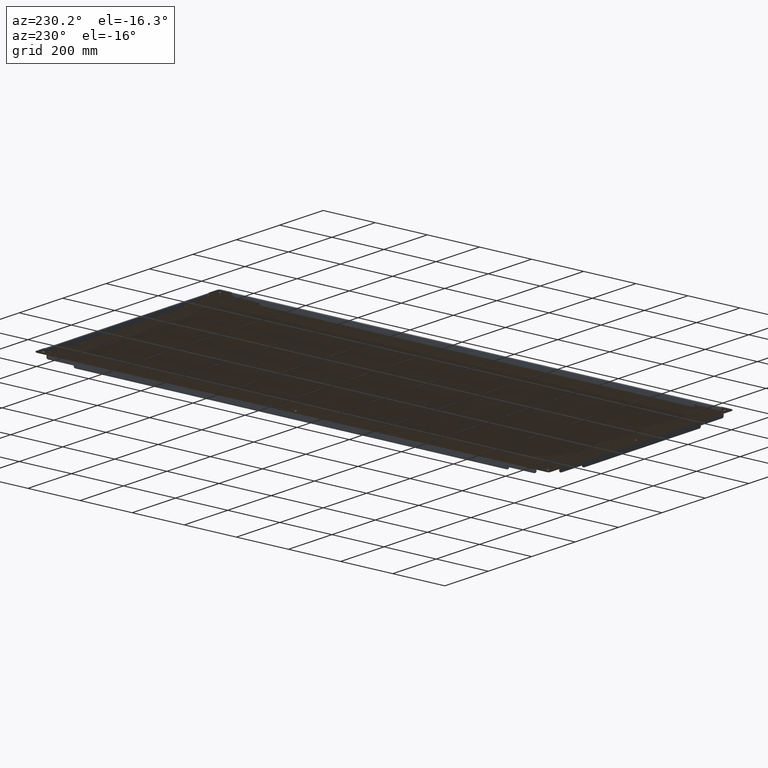
[diagram: clean part render]
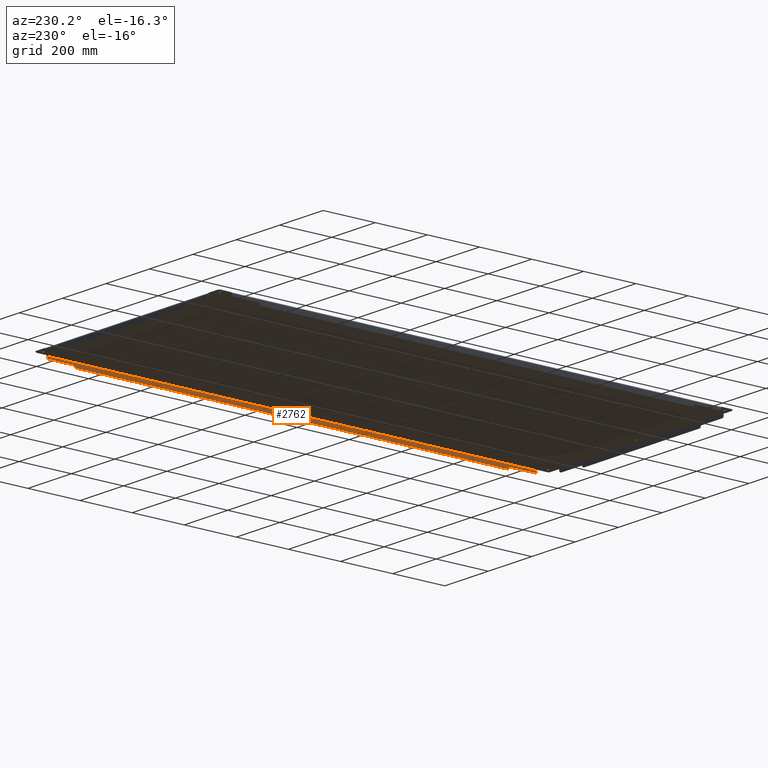
[diagram: same view with one face highlighted and labeled with its STEP entity id]
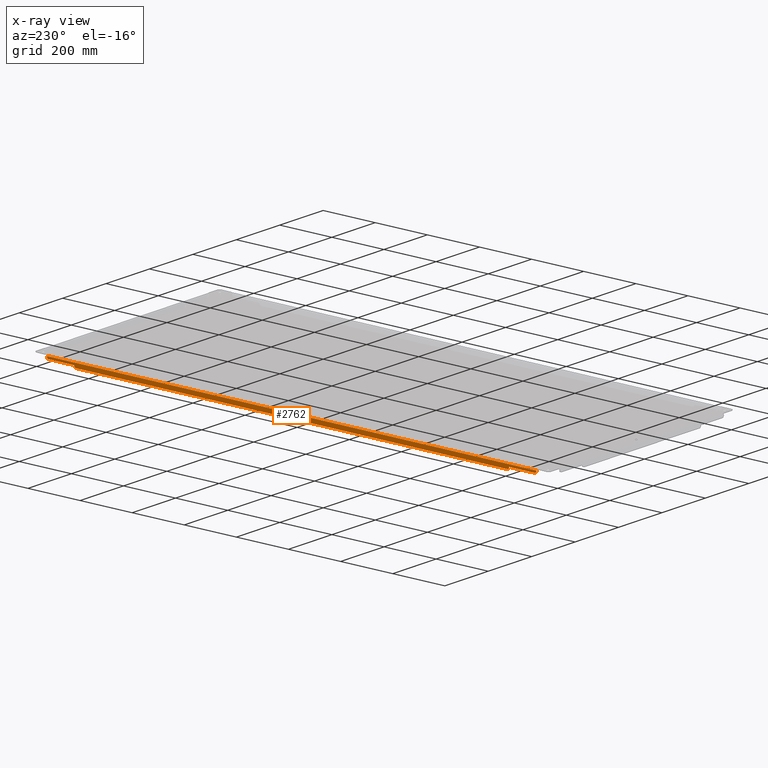
[diagram: x-ray of the same camera — body ghosted, the highlighted face saturated]
A machine part, auxiliary view. The second image highlights one B-rep face of the part: STEP entity #2762.
The next image is the same camera in x-ray: the body ghosted, the highlighted face saturated — about 0% of this face is hidden behind the body in this view.
In plain terms, the highlighted planar face has unit normal (1, 0, 0).
Its self-contained STEP definition (entity closure, byte-faithful):
#14 = ORIENTED_EDGE ( 'NONE', *, *, #2998, .T. ) ;
#110 = DIRECTION ( 'NONE',  ( 1.136448765364339494E-13, 1.000000000000000000, 0.0000000000000000000 ) ) ;
#176 = VECTOR ( 'NONE', #3451, 39.37007874015748143 ) ;
#180 = VERTEX_POINT ( 'NONE', #2625 ) ;
#184 = VERTEX_POINT ( 'NONE', #2670 ) ;
#192 = EDGE_CURVE ( 'NONE', #2556, #449, #2334, .T. ) ;
#208 = CARTESIAN_POINT ( 'NONE',  ( 16.71875000000000000, 32.59375000000000000, -0.6250000000000000000 ) ) ;
#210 = CARTESIAN_POINT ( 'NONE',  ( 16.71875000000000000, 32.84375000000000000, -0.6250000000000000000 ) ) ;
#227 = AXIS2_PLACEMENT_3D ( 'NONE', #834, #2701, #110 ) ;
#284 = VECTOR ( 'NONE', #3834, 39.37007874015748143 ) ;
#298 = VERTEX_POINT ( 'NONE', #481 ) ;
#304 = ORIENTED_EDGE ( 'NONE', *, *, #2195, .F. ) ;
#371 = DIRECTION ( 'NONE',  ( 0.0000000000000000000, 0.0000000000000000000, -1.000000000000000000 ) ) ;
#421 = VECTOR ( 'NONE', #607, 39.37007874015748143 ) ;
#449 = VERTEX_POINT ( 'NONE', #2563 ) ;
#472 = CARTESIAN_POINT ( 'NONE',  ( 16.71875000000000000, -32.59375000000000000, -0.6250000000000000000 ) ) ;
#481 = CARTESIAN_POINT ( 'NONE',  ( 16.71875000000000000, -36.96874999999939604, -0.3125000000000000000 ) ) ;
#531 = VERTEX_POINT ( 'NONE', #4193 ) ;
#581 = ORIENTED_EDGE ( 'NONE', *, *, #2560, .T. ) ;
#607 = DIRECTION ( 'NONE',  ( 0.0000000000000000000, -1.000000000000000000, -0.0000000000000000000 ) ) ;
#627 = FACE_OUTER_BOUND ( 'NONE', #2581, .T. ) ;
#741 = CARTESIAN_POINT ( 'NONE',  ( 16.71875000000000000, -36.96874999999999289, -0.2369999999999999607 ) ) ;
#777 = AXIS2_PLACEMENT_3D ( 'NONE', #3283, #3646, #371 ) ;
#814 = LINE ( 'NONE', #3765, #2387 ) ;
#834 = CARTESIAN_POINT ( 'NONE',  ( 16.71875000000002487, -36.71874999999881339, -0.3125000000000000000 ) ) ;
#948 = EDGE_CURVE ( 'NONE', #531, #184, #2814, .T. ) ;
#968 = CARTESIAN_POINT ( 'NONE',  ( 16.71875000000000000, -38.84375000000000000, 0.0000000000000000000 ) ) ;
#1013 = PLANE ( 'NONE',  #3480 ) ;
#1041 = EDGE_CURVE ( 'NONE', #298, #2421, #2067, .T. ) ;
#1108 = ORIENTED_EDGE ( 'NONE', *, *, #1041, .F. ) ;
#1304 = VECTOR ( 'NONE', #2603, 39.37007874015748143 ) ;
#1348 = DIRECTION ( 'NONE',  ( -0.0000000000000000000, -0.0000000000000000000, 1.000000000000000000 ) ) ;
#1361 = AXIS2_PLACEMENT_3D ( 'NONE', #472, #3065, #2161 ) ;
#1379 = CARTESIAN_POINT ( 'NONE',  ( 16.71875000000000000, -32.84375000000000000, -0.6250000000000000000 ) ) ;
#1480 = ORIENTED_EDGE ( 'NONE', *, *, #2126, .F. ) ;
#1508 = CARTESIAN_POINT ( 'NONE',  ( 16.71875000000000000, 34.90625000000000000, -0.5625000000000000000 ) ) ;
#1531 = CARTESIAN_POINT ( 'NONE',  ( 16.71875000000000000, -36.96874999999999289, -0.5560000000000000497 ) ) ;
#1533 = AXIS2_PLACEMENT_3D ( 'NONE', #208, #2230, #2800 ) ;
#1558 = CARTESIAN_POINT ( 'NONE',  ( 16.71875000000000000, 36.71875000000000000, -0.5625000000000000000 ) ) ;
#1580 = LINE ( 'NONE', #1982, #3222 ) ;
#1613 = EDGE_CURVE ( 'NONE', #2116, #2556, #4043, .T. ) ;
#1649 = DIRECTION ( 'NONE',  ( 0.0000000000000000000, 0.0000000000000000000, -1.000000000000000000 ) ) ;
#1768 = DIRECTION ( 'NONE',  ( 0.0000000000000000000, 1.000000000000000000, 0.0000000000000000000 ) ) ;
#1772 = EDGE_CURVE ( 'NONE', #2147, #3693, #3069, .T. ) ;
#1839 = ORIENTED_EDGE ( 'NONE', *, *, #1981, .F. ) ;
#1891 = LINE ( 'NONE', #1508, #421 ) ;
#1981 = EDGE_CURVE ( 'NONE', #2421, #2147, #1580, .T. ) ;
#1982 = CARTESIAN_POINT ( 'NONE',  ( 16.71875000000000000, -34.90625000000000000, -0.5625000000000000000 ) ) ;
#2067 = CIRCLE ( 'NONE', #227, 0.2499999999999986955 ) ;
#2077 = CARTESIAN_POINT ( 'NONE',  ( 16.71875000000000000, -32.84375000000000000, 0.0000000000000000000 ) ) ;
#2116 = VERTEX_POINT ( 'NONE', #2478 ) ;
#2126 = EDGE_CURVE ( 'NONE', #3693, #180, #3664, .T. ) ;
#2140 = CARTESIAN_POINT ( 'NONE',  ( 16.71875000000000000, -32.84374999999999289, -0.5625000000000000000 ) ) ;
#2147 = VERTEX_POINT ( 'NONE', #2140 ) ;
#2161 = DIRECTION ( 'NONE',  ( 0.0000000000000000000, 0.0000000000000000000, -1.000000000000000000 ) ) ;
#2195 = EDGE_CURVE ( 'NONE', #180, #2116, #814, .T. ) ;
#2230 = DIRECTION ( 'NONE',  ( 1.000000000000000000, 0.0000000000000000000, 0.0000000000000000000 ) ) ;
#2334 = LINE ( 'NONE', #3279, #2645 ) ;
#2363 = CARTESIAN_POINT ( 'NONE',  ( 16.71875000000001066, -36.71874999999940314, -0.5625000000000000000 ) ) ;
#2387 = VECTOR ( 'NONE', #1768, 39.37007874015748143 ) ;
#2421 = VERTEX_POINT ( 'NONE', #2363 ) ;
#2478 = CARTESIAN_POINT ( 'NONE',  ( 16.71875000000000000, 32.59375000000000000, -0.8750000000000001110 ) ) ;
#2496 = ORIENTED_EDGE ( 'NONE', *, *, #948, .F. ) ;
#2556 = VERTEX_POINT ( 'NONE', #210 ) ;
#2560 = EDGE_CURVE ( 'NONE', #3475, #449, #1891, .T. ) ;
#2563 = CARTESIAN_POINT ( 'NONE',  ( 16.71875000000000000, 32.84374999999999289, -0.5625000000000000000 ) ) ;
#2579 = EDGE_CURVE ( 'NONE', #3731, #298, #3184, .T. ) ;
#2581 = EDGE_LOOP ( 'NONE', ( #14, #2496, #4153, #581, #3368, #3632, #304, #1480, #3525, #1839, #1108, #2771 ) ) ;
#2603 = DIRECTION ( 'NONE',  ( -0.0000000000000000000, 1.000000000000000000, -0.0000000000000000000 ) ) ;
#2625 = CARTESIAN_POINT ( 'NONE',  ( 16.71875000000000000, -32.59375000000000000, -0.8750000000000000000 ) ) ;
#2645 = VECTOR ( 'NONE', #1348, 39.37007874015748143 ) ;
#2670 = CARTESIAN_POINT ( 'NONE',  ( 16.71875000000000000, 36.96875000000000000, -0.2369999999999999607 ) ) ;
#2701 = DIRECTION ( 'NONE',  ( 1.000000000000000000, -1.136960442324000035E-13, 0.0000000000000000000 ) ) ;
#2762 = ADVANCED_FACE ( 'NONE', ( #627 ), #1013, .F. ) ;
#2771 = ORIENTED_EDGE ( 'NONE', *, *, #2579, .F. ) ;
#2800 = DIRECTION ( 'NONE',  ( 0.0000000000000000000, 0.0000000000000000000, -1.000000000000000000 ) ) ;
#2814 = LINE ( 'NONE', #3861, #3079 ) ;
#2834 = DIRECTION ( 'NONE',  ( 0.0000000000000000000, -0.0000000000000000000, 1.000000000000000000 ) ) ;
#2919 = CARTESIAN_POINT ( 'NONE',  ( 16.71875000000000000, 36.96875000000000000, -0.2369999999999999885 ) ) ;
#2998 = EDGE_CURVE ( 'NONE', #3731, #184, #3868, .T. ) ;
#3065 = DIRECTION ( 'NONE',  ( 1.000000000000000000, 0.0000000000000000000, 0.0000000000000000000 ) ) ;
#3069 = LINE ( 'NONE', #2077, #176 ) ;
#3079 = VECTOR ( 'NONE', #2834, 39.37007874015748143 ) ;
#3184 = LINE ( 'NONE', #1531, #284 ) ;
#3222 = VECTOR ( 'NONE', #3953, 39.37007874015748143 ) ;
#3279 = CARTESIAN_POINT ( 'NONE',  ( 16.71875000000000000, 32.84375000000000711, 0.0000000000000000000 ) ) ;
#3283 = CARTESIAN_POINT ( 'NONE',  ( 16.71875000000000000, 36.71875000000000000, -0.3125000000000000000 ) ) ;
#3368 = ORIENTED_EDGE ( 'NONE', *, *, #192, .F. ) ;
#3451 = DIRECTION ( 'NONE',  ( 0.0000000000000000000, 0.0000000000000000000, -1.000000000000000000 ) ) ;
#3475 = VERTEX_POINT ( 'NONE', #1558 ) ;
#3480 = AXIS2_PLACEMENT_3D ( 'NONE', #968, #3582, #1649 ) ;
#3525 = ORIENTED_EDGE ( 'NONE', *, *, #1772, .F. ) ;
#3582 = DIRECTION ( 'NONE',  ( 1.000000000000000000, 0.0000000000000000000, 0.0000000000000000000 ) ) ;
#3632 = ORIENTED_EDGE ( 'NONE', *, *, #1613, .F. ) ;
#3646 = DIRECTION ( 'NONE',  ( 1.000000000000000000, 0.0000000000000000000, 0.0000000000000000000 ) ) ;
#3664 = CIRCLE ( 'NONE', #1361, 0.2500000000000000555 ) ;
#3687 = CIRCLE ( 'NONE', #777, 0.2500000000000000000 ) ;
#3693 = VERTEX_POINT ( 'NONE', #1379 ) ;
#3731 = VERTEX_POINT ( 'NONE', #741 ) ;
#3765 = CARTESIAN_POINT ( 'NONE',  ( 16.71875000000000000, 0.0000000000000000000, -0.8750000000000000000 ) ) ;
#3834 = DIRECTION ( 'NONE',  ( 0.0000000000000000000, -0.0000000000000000000, -1.000000000000000000 ) ) ;
#3861 = CARTESIAN_POINT ( 'NONE',  ( 16.71875000000000000, 36.96875000000000000, -0.5560000000000000497 ) ) ;
#3868 = LINE ( 'NONE', #2919, #1304 ) ;
#3953 = DIRECTION ( 'NONE',  ( 0.0000000000000000000, 1.000000000000000000, 0.0000000000000000000 ) ) ;
#4043 = CIRCLE ( 'NONE', #1533, 0.2500000000000000555 ) ;
#4153 = ORIENTED_EDGE ( 'NONE', *, *, #4180, .F. ) ;
#4180 = EDGE_CURVE ( 'NONE', #3475, #531, #3687, .T. ) ;
#4193 = CARTESIAN_POINT ( 'NONE',  ( 16.71875000000000000, 36.96875000000000000, -0.3125000000000000000 ) ) ;